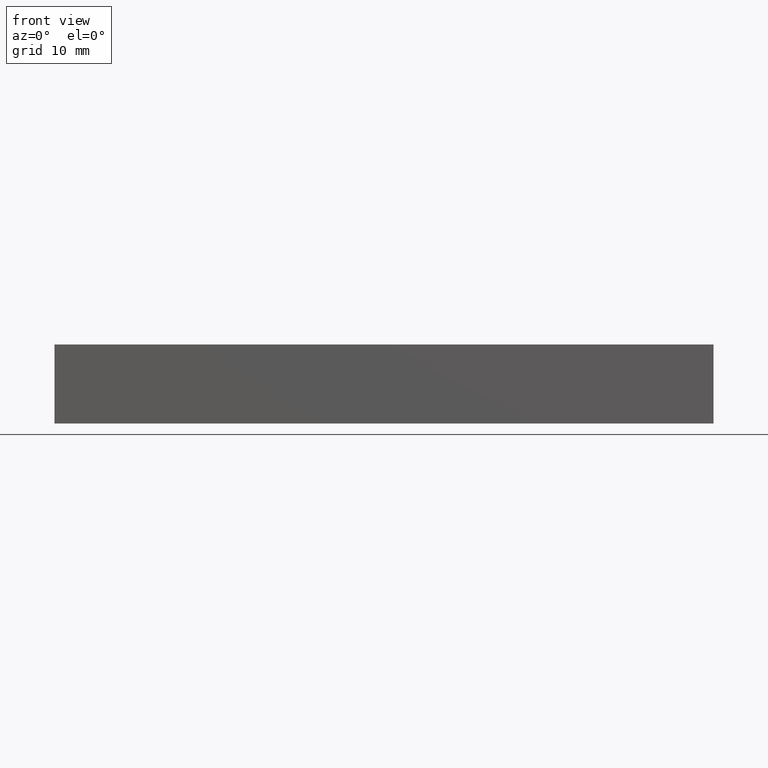
[diagram: clean part render]
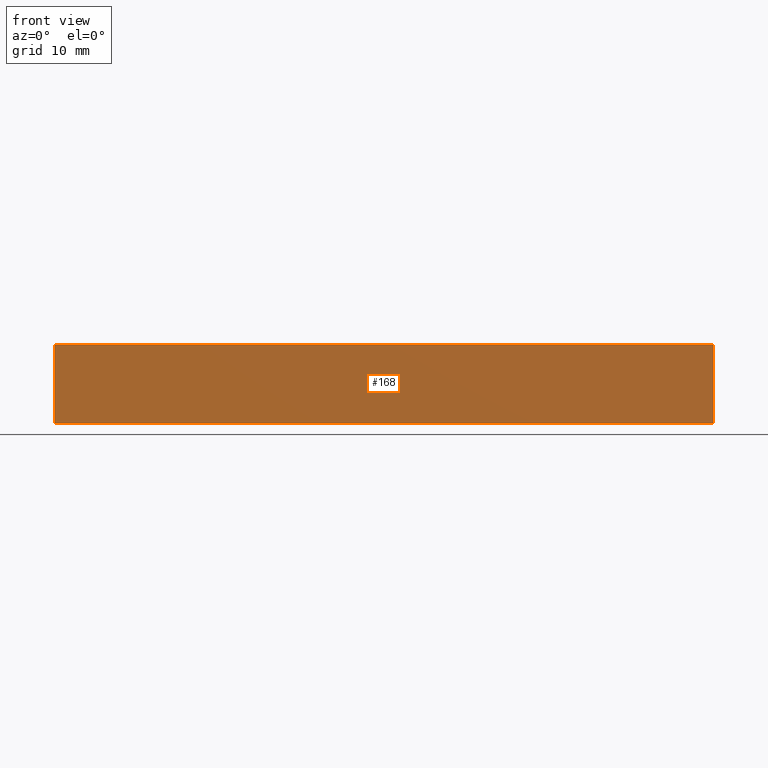
[diagram: same view with one face highlighted and labeled with its STEP entity id]
A machine part, front view. The second image highlights one B-rep face of the part: STEP entity #168.
In plain terms, the highlighted planar face has unit normal (0, -1, 0).
Its self-contained STEP definition (entity closure, byte-faithful):
#22=FACE_OUTER_BOUND('',#31,.T.);
#31=EDGE_LOOP('',(#141,#142,#143,#144));
#34=LINE('',#249,#55);
#42=LINE('',#264,#63);
#52=LINE('',#284,#73);
#53=LINE('',#286,#74);
#55=VECTOR('',#207,10.);
#63=VECTOR('',#217,10.);
#73=VECTOR('',#237,10.);
#74=VECTOR('',#240,10.);
#75=VERTEX_POINT('',#245);
#77=VERTEX_POINT('',#248);
#82=VERTEX_POINT('',#260);
#88=VERTEX_POINT('',#282);
#90=EDGE_CURVE('',#77,#75,#34,.T.);
#98=EDGE_CURVE('',#82,#77,#42,.T.);
#108=EDGE_CURVE('',#75,#88,#52,.T.);
#109=EDGE_CURVE('',#88,#82,#53,.T.);
#141=ORIENTED_EDGE('',*,*,#109,.T.);
#142=ORIENTED_EDGE('',*,*,#98,.T.);
#143=ORIENTED_EDGE('',*,*,#90,.T.);
#144=ORIENTED_EDGE('',*,*,#108,.T.);
#159=PLANE('',#200);
#168=ADVANCED_FACE('',(#22),#159,.T.);
#200=AXIS2_PLACEMENT_3D('',#285,#238,#239);
#207=DIRECTION('',(1.,0.,0.));
#217=DIRECTION('',(0.,0.,-1.));
#237=DIRECTION('',(0.,0.,1.));
#238=DIRECTION('center_axis',(0.,-1.,0.));
#239=DIRECTION('ref_axis',(0.,0.,-1.));
#240=DIRECTION('',(-1.,0.,0.));
#245=CARTESIAN_POINT('',(37.5,0.,-4.5));
#248=CARTESIAN_POINT('',(-37.5,0.,-4.5));
#249=CARTESIAN_POINT('',(37.5,0.,-4.5));
#260=CARTESIAN_POINT('',(-37.5,0.,4.5));
#264=CARTESIAN_POINT('',(-37.5,0.,0.));
#282=CARTESIAN_POINT('',(37.5,0.,4.5));
#284=CARTESIAN_POINT('',(37.5,0.,0.));
#285=CARTESIAN_POINT('Origin',(37.5,0.,0.));
#286=CARTESIAN_POINT('',(37.5,0.,4.5));